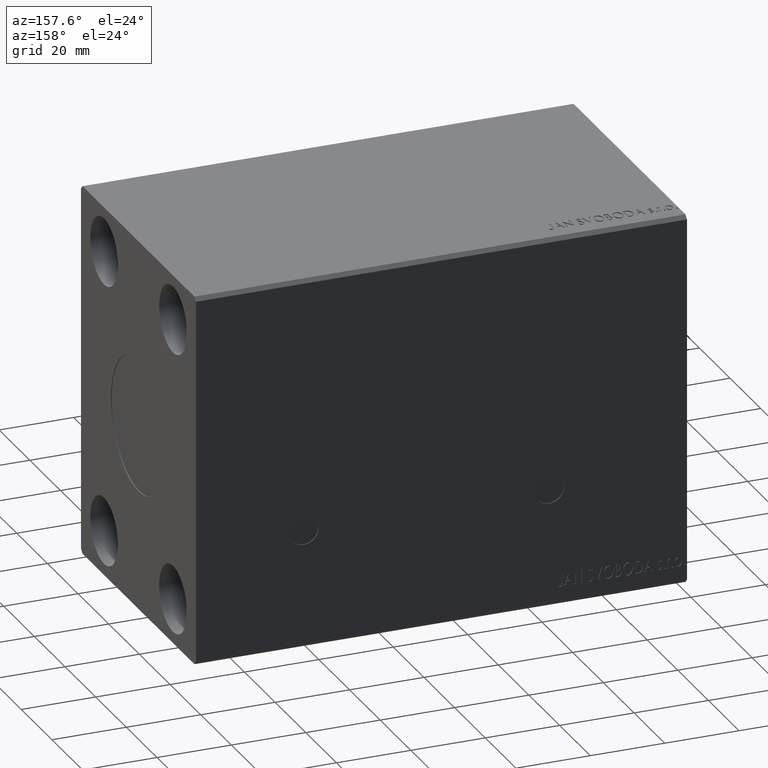
[diagram: clean part render]
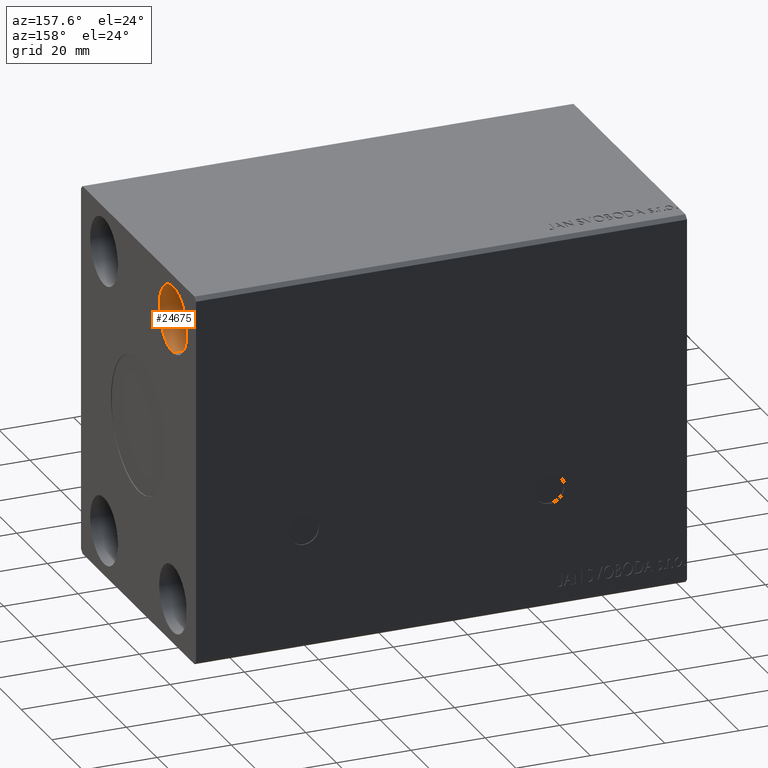
[diagram: same view with one face highlighted and labeled with its STEP entity id]
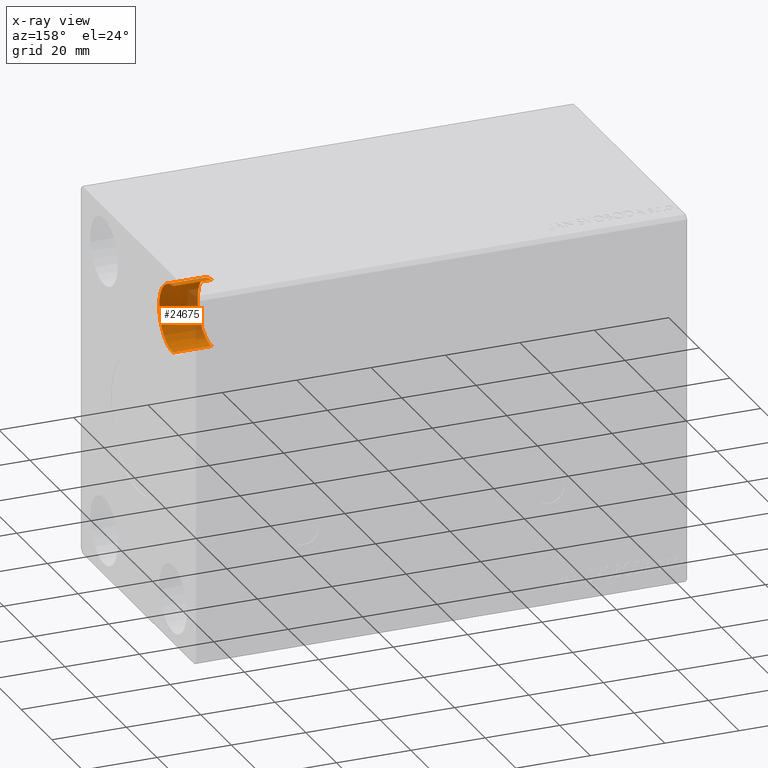
[diagram: x-ray of the same camera — body ghosted, the highlighted face saturated]
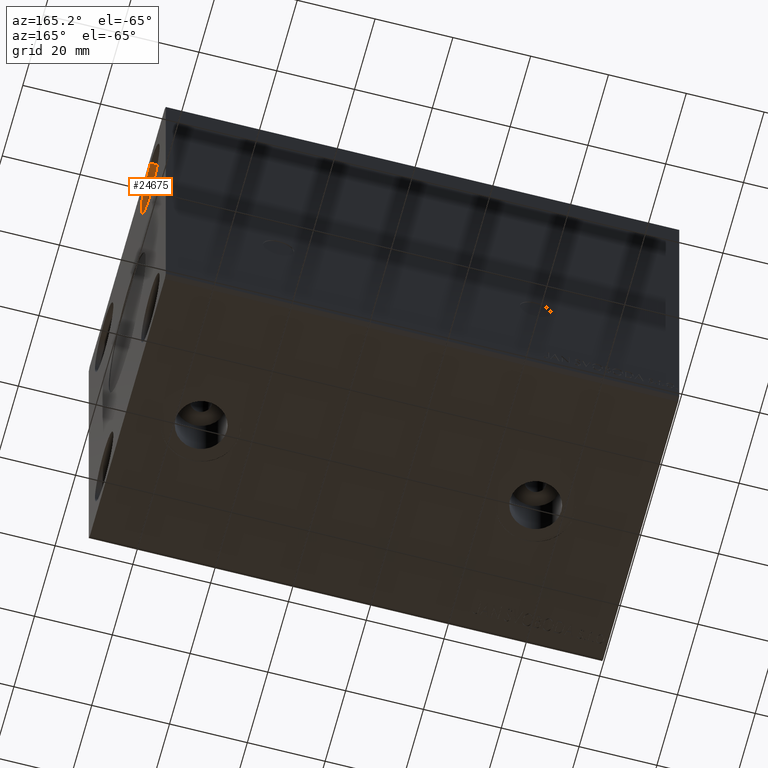
[diagram: same view with one face highlighted and labeled with its STEP entity id]
A machine part, auxiliary view. The second image highlights one B-rep face of the part: STEP entity #24675.
The next image is the same camera in x-ray: the body ghosted, the highlighted face saturated — about 20% of this face is hidden behind the body in this view.
A second angle (auxiliary view) of the same face is appended — the face is thin or edge-on in the first view.
In plain terms, the highlighted cylindrical surface (edge-blend (fillet) strip) has radius 9 mm, axis along (1, -0, -0).
Its self-contained STEP definition (entity closure, byte-faithful):
#1011 = VERTEX_POINT ( 'NONE', #1033 ) ;
#1033 = CARTESIAN_POINT ( 'NONE',  ( 121.6700000000000017, 22.50000000000000000, 47.00000000000000000 ) ) ;
#1829 = DIRECTION ( 'NONE',  ( 0.000000000000000000, 0.000000000000000000, -1.000000000000000000 ) ) ;
#2218 = EDGE_CURVE ( 'NONE', #10436, #24133, #4939, .T. ) ;
#4939 = LINE ( 'NONE', #35202, #14556 ) ;
#6163 = DIRECTION ( 'NONE',  ( 0.000000000000000000, 0.000000000000000000, -1.000000000000000000 ) ) ;
#8746 = EDGE_CURVE ( 'NONE', #1011, #38043, #22420, .T. ) ;
#10436 = VERTEX_POINT ( 'NONE', #20748 ) ;
#13460 = FACE_OUTER_BOUND ( 'NONE', #38171, .T. ) ;
#14162 = AXIS2_PLACEMENT_3D ( 'NONE', #32084, #37699, #1829 ) ;
#14445 = ORIENTED_EDGE ( 'NONE', *, *, #23670, .F. ) ;
#14556 = VECTOR ( 'NONE', #18041, 1000.000000000000000 ) ;
#18041 = DIRECTION ( 'NONE',  ( 1.000000000000000000, -0.000000000000000000, -0.000000000000000000 ) ) ;
#18096 = DIRECTION ( 'NONE',  ( 0.000000000000000000, 0.000000000000000000, -1.000000000000000000 ) ) ;
#19950 = EDGE_CURVE ( 'NONE', #38043, #24133, #21017, .T. ) ;
#20465 = CARTESIAN_POINT ( 'NONE',  ( 132.0000000000000000, 22.50000000000000000, 28.99999999999999645 ) ) ;
#20748 = CARTESIAN_POINT ( 'NONE',  ( 121.6700000000000017, 22.50000000000000000, 28.99999999999999645 ) ) ;
#21017 = CIRCLE ( 'NONE', #14162, 9.000000000000001776 ) ;
#21542 = CARTESIAN_POINT ( 'NONE',  ( 121.6700000000000017, 22.50000000000000000, 38.00000000000000000 ) ) ;
#21811 = CIRCLE ( 'NONE', #39654, 9.000000000000001776 ) ;
#22420 = LINE ( 'NONE', #34873, #35261 ) ;
#23670 = EDGE_CURVE ( 'NONE', #1011, #10436, #21811, .T. ) ;
#24133 = VERTEX_POINT ( 'NONE', #20465 ) ;
#24675 = ADVANCED_FACE ( 'NONE', ( #13460 ), #38832, .F. ) ;
#24968 = DIRECTION ( 'NONE',  ( 1.000000000000000000, -0.000000000000000000, -0.000000000000000000 ) ) ;
#25942 = CARTESIAN_POINT ( 'NONE',  ( 121.6700000000000017, 22.50000000000000000, 38.00000000000000000 ) ) ;
#28028 = CARTESIAN_POINT ( 'NONE',  ( 132.0000000000000000, 22.50000000000000000, 47.00000000000000000 ) ) ;
#29743 = ORIENTED_EDGE ( 'NONE', *, *, #19950, .T. ) ;
#30675 = ORIENTED_EDGE ( 'NONE', *, *, #8746, .T. ) ;
#32084 = CARTESIAN_POINT ( 'NONE',  ( 132.0000000000000000, 22.50000000000000000, 38.00000000000000000 ) ) ;
#34873 = CARTESIAN_POINT ( 'NONE',  ( 121.6700000000000017, 22.50000000000000000, 47.00000000000000000 ) ) ;
#35086 = DIRECTION ( 'NONE',  ( 1.000000000000000000, -0.000000000000000000, -0.000000000000000000 ) ) ;
#35202 = CARTESIAN_POINT ( 'NONE',  ( 121.6700000000000017, 22.50000000000000000, 28.99999999999999645 ) ) ;
#35261 = VECTOR ( 'NONE', #35086, 1000.000000000000000 ) ;
#35880 = ORIENTED_EDGE ( 'NONE', *, *, #2218, .F. ) ;
#37699 = DIRECTION ( 'NONE',  ( 1.000000000000000000, -0.000000000000000000, -0.000000000000000000 ) ) ;
#38043 = VERTEX_POINT ( 'NONE', #28028 ) ;
#38171 = EDGE_LOOP ( 'NONE', ( #14445, #30675, #29743, #35880 ) ) ;
#38832 = CYLINDRICAL_SURFACE ( 'NONE', #41723, 9.000000000000001776 ) ;
#39654 = AXIS2_PLACEMENT_3D ( 'NONE', #21542, #24968, #18096 ) ;
#41723 = AXIS2_PLACEMENT_3D ( 'NONE', #25942, #42272, #6163 ) ;
#42272 = DIRECTION ( 'NONE',  ( 1.000000000000000000, -0.000000000000000000, -0.000000000000000000 ) ) ;